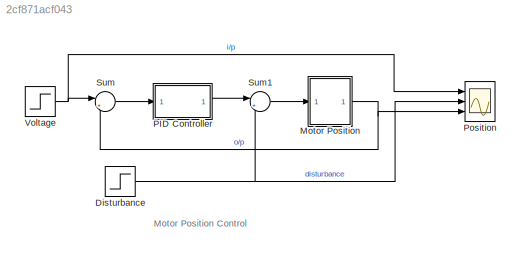
MODEL slx_2cf871acf043
KIND model
CONFIG AbsTol = auto
CONFIG EnableMultiTasking = off
CONFIG FixedStep = 0.001
CONFIG MaxStep = auto
CONFIG MinStep = auto
CONFIG RelTol = 1e-3
CONFIG SampleTimeConstraint = Unconstrained
CONFIG SolverName = VariableStepAuto
CONFIG StartTime = 0.0
CONFIG StopTime = 0.1
BLOCK [Step] Disturbance
  SampleTime = 0
  Time = 0.06
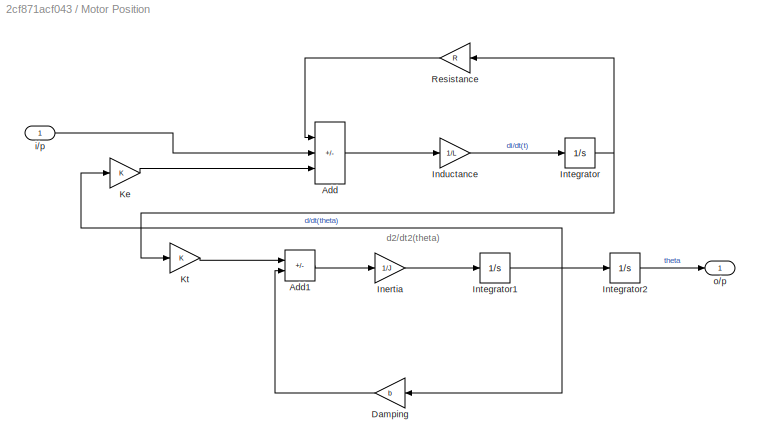
BLOCK [SubSystem] Motor Position
  Ports = [1, 1]
  RequestExecContextInheritance = off
BLOCK [Sum] Motor Position/Add
  IconShape = rectangular
  Inputs = -+-
  Ports = [3, 1]
BLOCK [Sum] Motor Position/Add1
  IconShape = rectangular
  Inputs = +-
  Ports = [2, 1]
BLOCK [Gain] Motor Position/Damping
  Gain = b
  NameLocation = top
BLOCK [Gain] Motor Position/Inductance
  Gain = 1/L
BLOCK [Gain] Motor Position/Inertia
  Gain = 1/J
BLOCK [Integrator] Motor Position/Integrator
  Ports = [1, 1]
BLOCK [Integrator] Motor Position/Integrator1
  Ports = [1, 1]
BLOCK [Integrator] Motor Position/Integrator2
  Ports = [1, 1]
BLOCK [Gain] Motor Position/Ke
  Gain = K
BLOCK [Gain] Motor Position/Kt
  Gain = K
BLOCK [Gain] Motor Position/Resistance
  Gain = R
BLOCK [Inport] Motor Position/i//p
BLOCK [Outport] Motor Position/o//p
BLOCK [ModelReference] PID Controller
  ModelNameDialog = PID_Controller.slx
  ModelReferenceVersion = 1.5
  Ports = [1, 1]
BLOCK [Scope] Position
  Floating = off
  NumInputPorts = 3
  Ports = [3]
  ScopeSpecificationString = Simulink.scopes.TimeScopeBlockCfg('CurrentConfiguration', extmgr.ConfigurationSet(extmgr.Configuration('Core','General UI',true),extmgr.Configuration('Core','Source UI',true),extmgr.Configuration('Sources','WiredSimulink',true),extmgr.Configuration('Visuals','Time Domain',true,'SerializedDisplays',{struct('MinYLimReal','0.9','MaxYLimReal','1.1','YLabelReal','','MinYLimMag','0.9','MaxYLimMag','1.1'...<+2705ch>
BLOCK [Sum] Sum
  Inputs = |+-
  Ports = [2, 1]
BLOCK [Sum] Sum1
  Inputs = |++
  Ports = [2, 1]
BLOCK [Step] Voltage
  SampleTime = 0
  Time = 0
ANNOTATION (root): Motor Position Control
ANNOTATION Motor Position: d2/dt2(theta)
NET Disturbance:1 -> Position:2, Sum1:2
LINE Motor Position/Add1:1 -> Motor Position/Inertia:1
LINE Motor Position/Add:1 -> Motor Position/Inductance:1
LINE Motor Position/Damping:1 -> Motor Position/Add1:2
LINE Motor Position/Inductance:1 -> Motor Position/Integrator:1
LINE Motor Position/Inertia:1 -> Motor Position/Integrator1:1
NET Motor Position/Integrator1:1 -> Motor Position/Damping:1, Motor Position/Integrator2:1, Motor Position/Ke:1
LINE Motor Position/Integrator2:1 -> Motor Position/o//p:1
NET Motor Position/Integrator:1 -> Motor Position/Kt:1, Motor Position/Resistance:1
LINE Motor Position/Ke:1 -> Motor Position/Add:3
LINE Motor Position/Kt:1 -> Motor Position/Add1:1
LINE Motor Position/Resistance:1 -> Motor Position/Add:1
LINE Motor Position/i//p:1 -> Motor Position/Add:2
NET Motor Position:1 -> Position:3, Sum:2
LINE PID Controller:1 -> Sum1:1
LINE Sum1:1 -> Motor Position:1
LINE Sum:1 -> PID Controller:1
NET Voltage:1 -> Position:1, Sum:1
note: NET lines group one-source signal fan-out (src -> all destinations, sorted); 1:1 wires keep LINE
